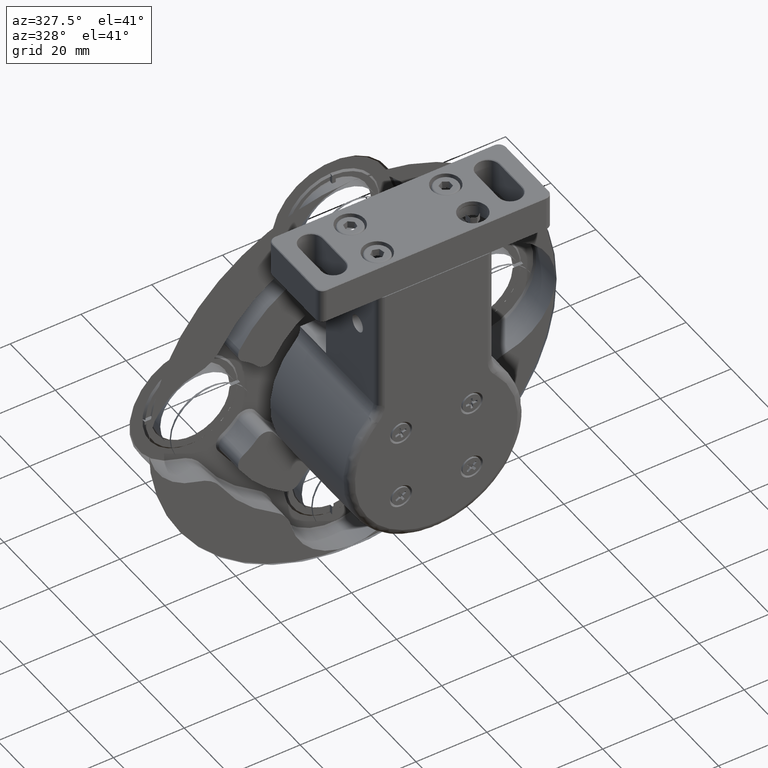
[diagram: clean part render]
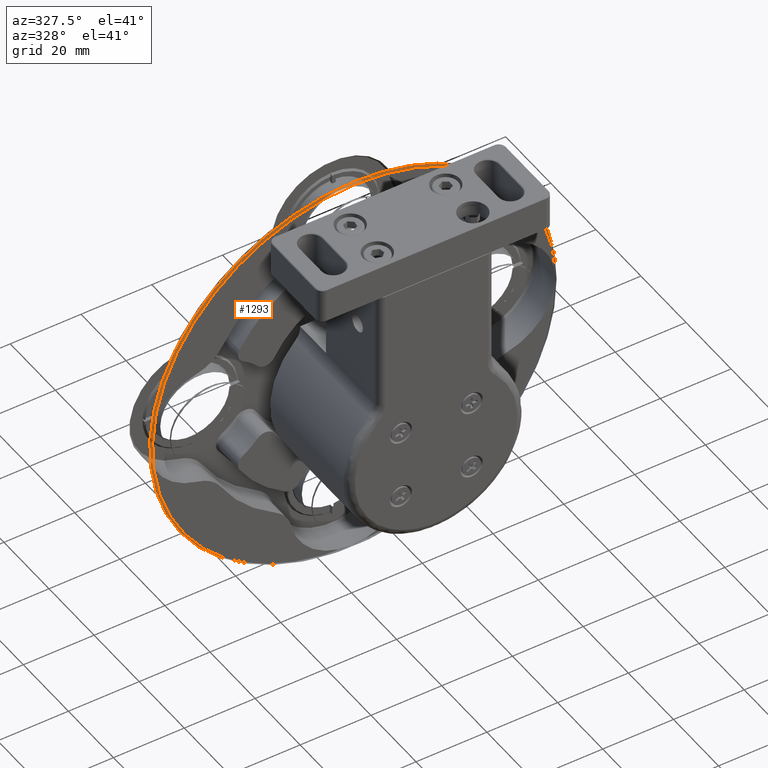
[diagram: same view with one face highlighted and labeled with its STEP entity id]
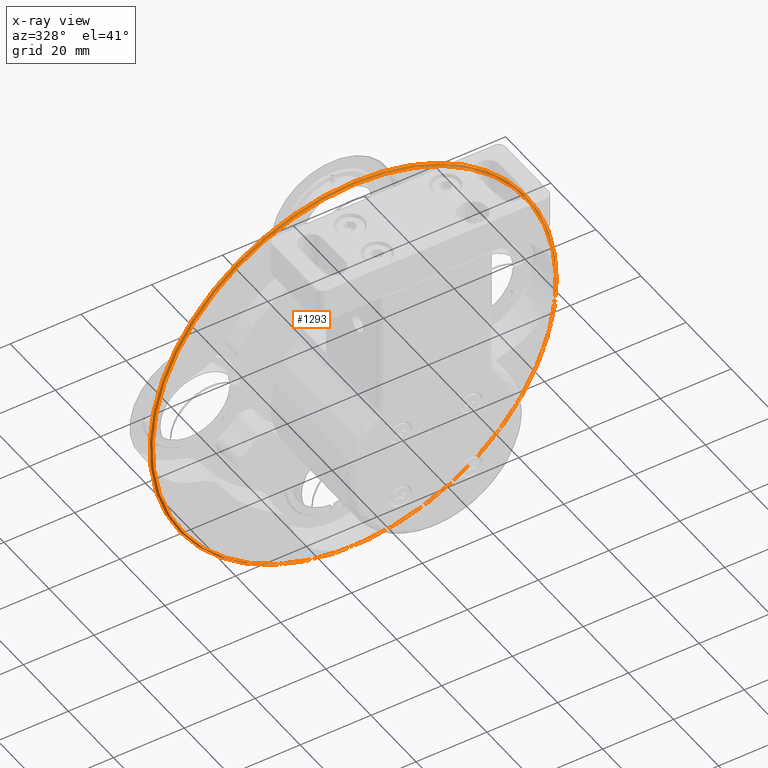
[diagram: x-ray of the same camera — body ghosted, the highlighted face saturated]
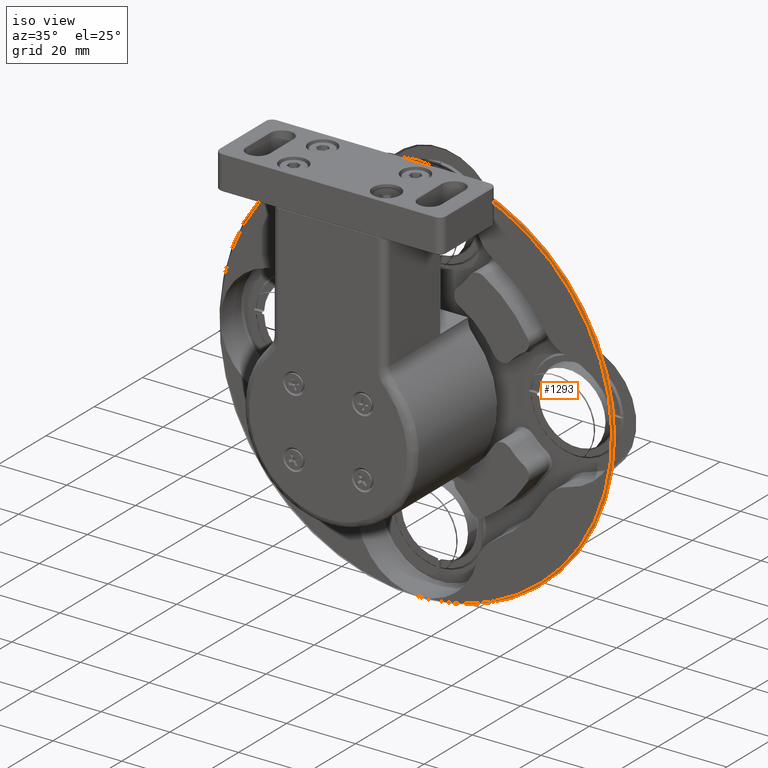
[diagram: same view with one face highlighted and labeled with its STEP entity id]
A machine part, auxiliary view. The second image highlights one B-rep face of the part: STEP entity #1293.
The next image is the same camera in x-ray: the body ghosted, the highlighted face saturated — about 16% of this face is hidden behind the body in this view.
A second angle (iso view) of the same face is appended — the face is thin or edge-on in the first view.
In plain terms, the highlighted conical surface has half-angle 45 deg.
Its self-contained STEP definition (entity closure, byte-faithful):
#277 = VERTEX_POINT ( 'NONE', #8290 ) ;
#937 = AXIS2_PLACEMENT_3D ( 'NONE', #12422, #17570, #11088 ) ;
#945 = ORIENTED_EDGE ( 'NONE', *, *, #4902, .F. ) ;
#1106 = FACE_BOUND ( 'NONE', #2377, .T. ) ;
#1293 = ADVANCED_FACE ( 'NONE', ( #1106, #6527 ), #11315, .F. ) ;
#2336 = CIRCLE ( 'NONE', #937, 57.50000000000000000 ) ;
#2377 = EDGE_LOOP ( 'NONE', ( #5059 ) ) ;
#2601 = VERTEX_POINT ( 'NONE', #13193 ) ;
#4902 = EDGE_CURVE ( 'NONE', #2601, #2601, #2336, .T. ) ;
#5059 = ORIENTED_EDGE ( 'NONE', *, *, #8771, .F. ) ;
#5283 = DIRECTION ( 'NONE',  ( 1.259463525446730209E-28, 1.000000000000000000, -6.033820786006285224E-17 ) ) ;
#6487 = AXIS2_PLACEMENT_3D ( 'NONE', #12047, #5283, #10709 ) ;
#6527 = FACE_OUTER_BOUND ( 'NONE', #11930, .T. ) ;
#6706 = AXIS2_PLACEMENT_3D ( 'NONE', #16376, #13640, #13898 ) ;
#8290 = CARTESIAN_POINT ( 'NONE',  ( -32.19565927654613091, 31.06348211055967568, 127.0000000000000000 ) ) ;
#8771 = EDGE_CURVE ( 'NONE', #277, #277, #13257, .T. ) ;
#10709 = DIRECTION ( 'NONE',  ( 0.000000000000000000, 1.206764157201257045E-16, 1.000000000000000000 ) ) ;
#11088 = DIRECTION ( 'NONE',  ( 1.000000000000000000, 0.000000000000000000, 2.087219286295294296E-12 ) ) ;
#11315 = CONICAL_SURFACE ( 'NONE', #6487, 57.50000000000000711, 0.7853981633974344012 ) ;
#11930 = EDGE_LOOP ( 'NONE', ( #945 ) ) ;
#12047 = CARTESIAN_POINT ( 'NONE',  ( -32.19565927654613091, 31.56348211055968278, 69.99999999999998579 ) ) ;
#12422 = CARTESIAN_POINT ( 'NONE',  ( -32.19565927654613091, 31.56348211055967568, 69.99999999999998579 ) ) ;
#13193 = CARTESIAN_POINT ( 'NONE',  ( 25.30434072345387619, 31.56348211055967568, 70.00000000012001067 ) ) ;
#13257 = CIRCLE ( 'NONE', #6706, 57.00000000000000711 ) ;
#13640 = DIRECTION ( 'NONE',  ( 0.000000000000000000, 1.000000000000000000, 0.000000000000000000 ) ) ;
#13898 = DIRECTION ( 'NONE',  ( 0.000000000000000000, 0.000000000000000000, 1.000000000000000000 ) ) ;
#16376 = CARTESIAN_POINT ( 'NONE',  ( -32.19565927654613091, 31.06348211055967568, 69.99999999999998579 ) ) ;
#17570 = DIRECTION ( 'NONE',  ( 3.488278094132890012E-29, -1.000000000000000000, -0.000000000000000000 ) ) ;